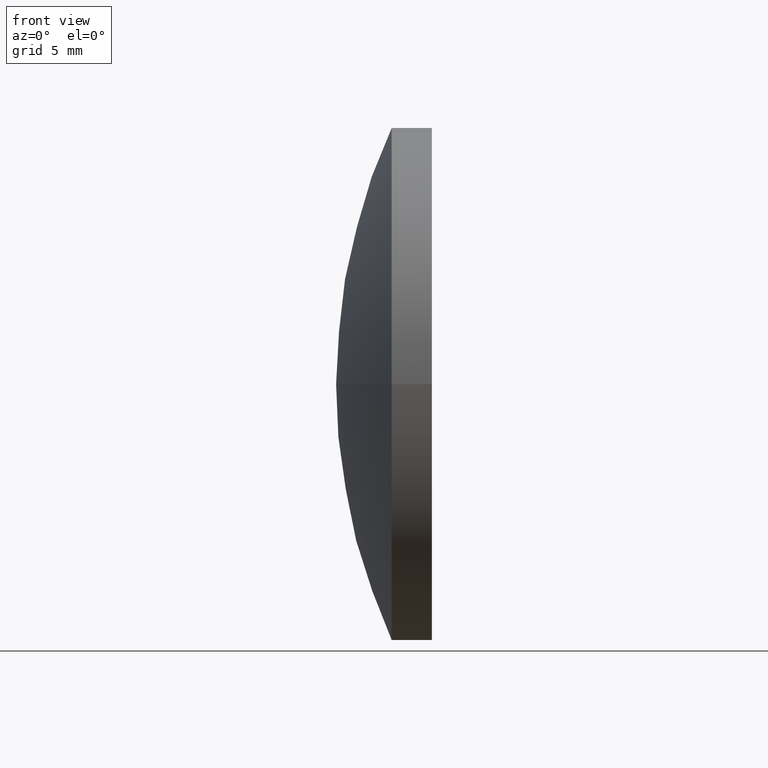
[diagram: clean part render]
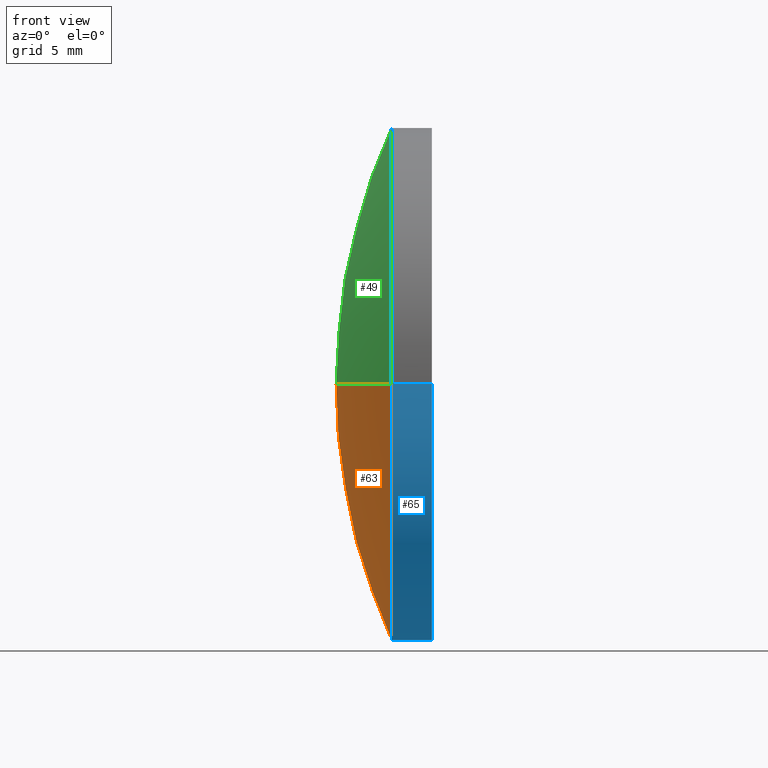
[diagram: same view with three faces highlighted in distinct colors, each labeled with its STEP entity id]
A machine part, front view with three faces highlighted in distinct colors.
Their STEP definitions:

[orange] entity #63 — the highlighted spherical surface has radius 46 mm.
#3 = AXIS2_PLACEMENT_3D ( 'NONE', #134, #34, #135 ) ;
#7 = DIRECTION ( 'NONE',  ( -1.000000000000000000, -6.937607244762875000E-016, -0.0000000000000000000 ) ) ;
#8 = CARTESIAN_POINT ( 'NONE',  ( 168.8554213155557900, 65.21684047094032600, 0.0000000000000000000 ) ) ;
#12 = ORIENTED_EDGE ( 'NONE', *, *, #160, .T. ) ;
#16 = FACE_OUTER_BOUND ( 'NONE', #124, .T. ) ;
#22 = CIRCLE ( 'NONE', #62, 46.00000000000000000 ) ;
#34 = DIRECTION ( 'NONE',  ( -0.0000000000000000000, 0.0000000000000000000, 1.000000000000000000 ) ) ;
#42 = DIRECTION ( 'NONE',  ( -0.0000000000000000000, 0.0000000000000000000, -1.000000000000000000 ) ) ;
#46 = CARTESIAN_POINT ( 'NONE',  ( 126.9740486661308800, 84.24184047094033200, 2.329890535377838700E-015 ) ) ;
#54 = SPHERICAL_SURFACE ( 'NONE', #128, 45.99999999999999300 ) ;
#59 = CARTESIAN_POINT ( 'NONE',  ( 126.9740486661308800, 65.21684047094034000, 0.0000000000000000000 ) ) ;
#61 = CARTESIAN_POINT ( 'NONE',  ( 122.8554213155558000, 65.21684047094029800, 0.0000000000000000000 ) ) ;
#62 = AXIS2_PLACEMENT_3D ( 'NONE', #8, #153, #96 ) ;
#63 = ADVANCED_FACE ( 'NONE', ( #16 ), #54, .T. ) ;
#68 = VERTEX_POINT ( 'NONE', #186 ) ;
#69 = EDGE_CURVE ( 'NONE', #68, #125, #22, .T. ) ;
#74 = ORIENTED_EDGE ( 'NONE', *, *, #69, .T. ) ;
#90 = AXIS2_PLACEMENT_3D ( 'NONE', #59, #7, #185 ) ;
#96 = DIRECTION ( 'NONE',  ( 0.0000000000000000000, 1.000000000000000000, 1.224646799147353000E-016 ) ) ;
#115 = CARTESIAN_POINT ( 'NONE',  ( 168.8554213155557900, 65.21684047094032600, 0.0000000000000000000 ) ) ;
#117 = CIRCLE ( 'NONE', #3, 45.99999999999998600 ) ;
#122 = CIRCLE ( 'NONE', #90, 19.02499999999999500 ) ;
#124 = EDGE_LOOP ( 'NONE', ( #12, #74, #145 ) ) ;
#125 = VERTEX_POINT ( 'NONE', #61 ) ;
#128 = AXIS2_PLACEMENT_3D ( 'NONE', #115, #42, #149 ) ;
#134 = CARTESIAN_POINT ( 'NONE',  ( 168.8554213155557900, 65.21684047094032600, 0.0000000000000000000 ) ) ;
#135 = DIRECTION ( 'NONE',  ( 1.000000000000000000, 0.0000000000000000000, 0.0000000000000000000 ) ) ;
#140 = EDGE_CURVE ( 'NONE', #155, #125, #117, .T. ) ;
#145 = ORIENTED_EDGE ( 'NONE', *, *, #140, .F. ) ;
#149 = DIRECTION ( 'NONE',  ( -6.033820786006285700E-016, 1.000000000000000000, 0.0000000000000000000 ) ) ;
#153 = DIRECTION ( 'NONE',  ( -8.496118506040342700E-032, 1.224646799147353200E-016, -1.000000000000000000 ) ) ;
#155 = VERTEX_POINT ( 'NONE', #46 ) ;
#160 = EDGE_CURVE ( 'NONE', #155, #68, #122, .T. ) ;
#185 = DIRECTION ( 'NONE',  ( 0.0000000000000000000, -1.000000000000000000, 0.0000000000000000000 ) ) ;
#186 = CARTESIAN_POINT ( 'NONE',  ( 126.9740486661308800, 46.19184047094034900, 0.0000000000000000000 ) ) ;

[blue] entity #65 — the highlighted cylindrical surface (partial cylindrical patch) has radius 19.025 mm, axis along (-1, -0, -0).
#6 = DIRECTION ( 'NONE',  ( -1.000000000000000000, -6.937607244762875000E-016, -0.0000000000000000000 ) ) ;
#7 = DIRECTION ( 'NONE',  ( -1.000000000000000000, -6.937607244762875000E-016, -0.0000000000000000000 ) ) ;
#14 = VECTOR ( 'NONE', #106, 1000.000000000000000 ) ;
#18 = CARTESIAN_POINT ( 'NONE',  ( 129.9541739262057300, 65.21684047094034000, 0.0000000000000000000 ) ) ;
#27 = AXIS2_PLACEMENT_3D ( 'NONE', #18, #178, #146 ) ;
#28 = ORIENTED_EDGE ( 'NONE', *, *, #144, .T. ) ;
#30 = CARTESIAN_POINT ( 'NONE',  ( 129.9541739262057300, 84.24184047094027500, 2.329890535377707400E-015 ) ) ;
#39 = EDGE_LOOP ( 'NONE', ( #148, #168, #28, #103 ) ) ;
#40 = VERTEX_POINT ( 'NONE', #30 ) ;
#41 = AXIS2_PLACEMENT_3D ( 'NONE', #166, #151, #133 ) ;
#46 = CARTESIAN_POINT ( 'NONE',  ( 126.9740486661308800, 84.24184047094033200, 2.329890535377838700E-015 ) ) ;
#48 = EDGE_CURVE ( 'NONE', #40, #175, #50, .T. ) ;
#50 = CIRCLE ( 'NONE', #27, 19.02499999999995900 ) ;
#59 = CARTESIAN_POINT ( 'NONE',  ( 126.9740486661308800, 65.21684047094034000, 0.0000000000000000000 ) ) ;
#65 = ADVANCED_FACE ( 'NONE', ( #126 ), #71, .T. ) ;
#68 = VERTEX_POINT ( 'NONE', #186 ) ;
#71 = CYLINDRICAL_SURFACE ( 'NONE', #41, 19.02499999999997400 ) ;
#81 = CARTESIAN_POINT ( 'NONE',  ( 115.9444912979631800, 46.19184047094035600, 0.0000000000000000000 ) ) ;
#90 = AXIS2_PLACEMENT_3D ( 'NONE', #59, #7, #185 ) ;
#100 = EDGE_CURVE ( 'NONE', #40, #155, #176, .T. ) ;
#102 = LINE ( 'NONE', #81, #14 ) ;
#103 = ORIENTED_EDGE ( 'NONE', *, *, #160, .F. ) ;
#106 = DIRECTION ( 'NONE',  ( -1.000000000000000000, -6.937607244762875000E-016, -0.0000000000000000000 ) ) ;
#121 = CARTESIAN_POINT ( 'NONE',  ( 115.9444912979631500, 84.24184047094030300, 2.329890535377836000E-015 ) ) ;
#122 = CIRCLE ( 'NONE', #90, 19.02499999999999500 ) ;
#126 = FACE_OUTER_BOUND ( 'NONE', #39, .T. ) ;
#133 = DIRECTION ( 'NONE',  ( 7.294500818824955000E-016, -1.000000000000000000, 0.0000000000000000000 ) ) ;
#144 = EDGE_CURVE ( 'NONE', #175, #68, #102, .T. ) ;
#146 = DIRECTION ( 'NONE',  ( 0.0000000000000000000, -1.000000000000000000, 0.0000000000000000000 ) ) ;
#148 = ORIENTED_EDGE ( 'NONE', *, *, #100, .F. ) ;
#150 = VECTOR ( 'NONE', #6, 1000.000000000000000 ) ;
#151 = DIRECTION ( 'NONE',  ( -1.000000000000000000, -6.937607244762875000E-016, -0.0000000000000000000 ) ) ;
#155 = VERTEX_POINT ( 'NONE', #46 ) ;
#160 = EDGE_CURVE ( 'NONE', #155, #68, #122, .T. ) ;
#166 = CARTESIAN_POINT ( 'NONE',  ( 115.9444912979631700, 65.21684047094032600, 0.0000000000000000000 ) ) ;
#168 = ORIENTED_EDGE ( 'NONE', *, *, #48, .T. ) ;
#175 = VERTEX_POINT ( 'NONE', #184 ) ;
#176 = LINE ( 'NONE', #121, #150 ) ;
#178 = DIRECTION ( 'NONE',  ( -1.000000000000000000, -6.937607244762875000E-016, -0.0000000000000000000 ) ) ;
#184 = CARTESIAN_POINT ( 'NONE',  ( 129.9541739262057300, 46.19184047094142200, 0.0000000000000000000 ) ) ;
#185 = DIRECTION ( 'NONE',  ( 0.0000000000000000000, -1.000000000000000000, 0.0000000000000000000 ) ) ;
#186 = CARTESIAN_POINT ( 'NONE',  ( 126.9740486661308800, 46.19184047094034900, 0.0000000000000000000 ) ) ;

[green] entity #49 — the highlighted spherical surface has radius 46 mm.
#3 = AXIS2_PLACEMENT_3D ( 'NONE', #134, #34, #135 ) ;
#8 = CARTESIAN_POINT ( 'NONE',  ( 168.8554213155557900, 65.21684047094032600, 0.0000000000000000000 ) ) ;
#10 = EDGE_CURVE ( 'NONE', #68, #155, #79, .T. ) ;
#22 = CIRCLE ( 'NONE', #62, 46.00000000000000000 ) ;
#25 = EDGE_LOOP ( 'NONE', ( #112, #162, #60 ) ) ;
#34 = DIRECTION ( 'NONE',  ( -0.0000000000000000000, 0.0000000000000000000, 1.000000000000000000 ) ) ;
#46 = CARTESIAN_POINT ( 'NONE',  ( 126.9740486661308800, 84.24184047094033200, 2.329890535377838700E-015 ) ) ;
#49 = ADVANCED_FACE ( 'NONE', ( #192 ), #173, .T. ) ;
#60 = ORIENTED_EDGE ( 'NONE', *, *, #140, .T. ) ;
#61 = CARTESIAN_POINT ( 'NONE',  ( 122.8554213155558000, 65.21684047094029800, 0.0000000000000000000 ) ) ;
#62 = AXIS2_PLACEMENT_3D ( 'NONE', #8, #153, #96 ) ;
#68 = VERTEX_POINT ( 'NONE', #186 ) ;
#69 = EDGE_CURVE ( 'NONE', #68, #125, #22, .T. ) ;
#73 = DIRECTION ( 'NONE',  ( 0.0000000000000000000, -1.000000000000000000, 0.0000000000000000000 ) ) ;
#79 = CIRCLE ( 'NONE', #179, 19.02499999999999500 ) ;
#96 = DIRECTION ( 'NONE',  ( 0.0000000000000000000, 1.000000000000000000, 1.224646799147353000E-016 ) ) ;
#105 = CARTESIAN_POINT ( 'NONE',  ( 168.8554213155557900, 65.21684047094032600, 0.0000000000000000000 ) ) ;
#112 = ORIENTED_EDGE ( 'NONE', *, *, #69, .F. ) ;
#117 = CIRCLE ( 'NONE', #3, 45.99999999999998600 ) ;
#125 = VERTEX_POINT ( 'NONE', #61 ) ;
#127 = CARTESIAN_POINT ( 'NONE',  ( 126.9740486661308800, 65.21684047094034000, 0.0000000000000000000 ) ) ;
#129 = DIRECTION ( 'NONE',  ( -6.033820786006285700E-016, 1.000000000000000000, 0.0000000000000000000 ) ) ;
#131 = DIRECTION ( 'NONE',  ( -0.0000000000000000000, 0.0000000000000000000, -1.000000000000000000 ) ) ;
#134 = CARTESIAN_POINT ( 'NONE',  ( 168.8554213155557900, 65.21684047094032600, 0.0000000000000000000 ) ) ;
#135 = DIRECTION ( 'NONE',  ( 1.000000000000000000, 0.0000000000000000000, 0.0000000000000000000 ) ) ;
#140 = EDGE_CURVE ( 'NONE', #155, #125, #117, .T. ) ;
#153 = DIRECTION ( 'NONE',  ( -8.496118506040342700E-032, 1.224646799147353200E-016, -1.000000000000000000 ) ) ;
#155 = VERTEX_POINT ( 'NONE', #46 ) ;
#162 = ORIENTED_EDGE ( 'NONE', *, *, #10, .T. ) ;
#163 = DIRECTION ( 'NONE',  ( -1.000000000000000000, -6.937607244762875000E-016, -0.0000000000000000000 ) ) ;
#173 = SPHERICAL_SURFACE ( 'NONE', #174, 45.99999999999999300 ) ;
#174 = AXIS2_PLACEMENT_3D ( 'NONE', #105, #131, #129 ) ;
#179 = AXIS2_PLACEMENT_3D ( 'NONE', #127, #163, #73 ) ;
#186 = CARTESIAN_POINT ( 'NONE',  ( 126.9740486661308800, 46.19184047094034900, 0.0000000000000000000 ) ) ;
#192 = FACE_OUTER_BOUND ( 'NONE', #25, .T. ) ;